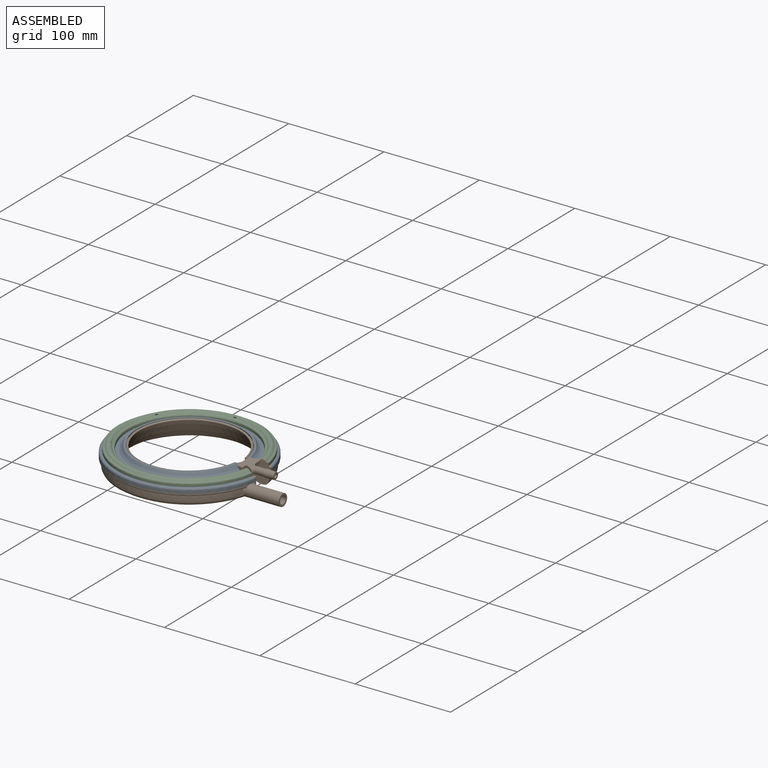
[diagram: assembled view]
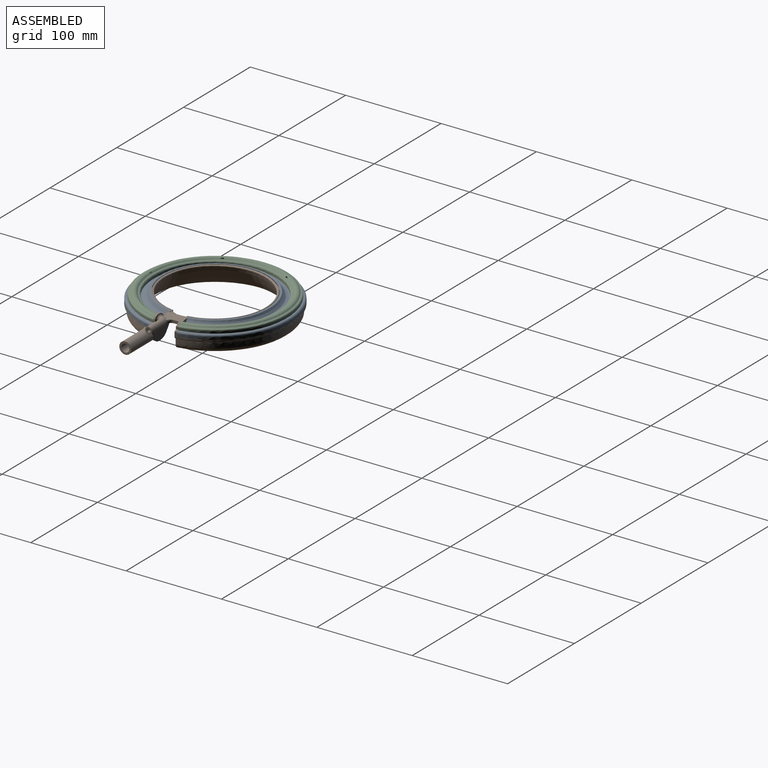
[diagram: assembled view, second angle]
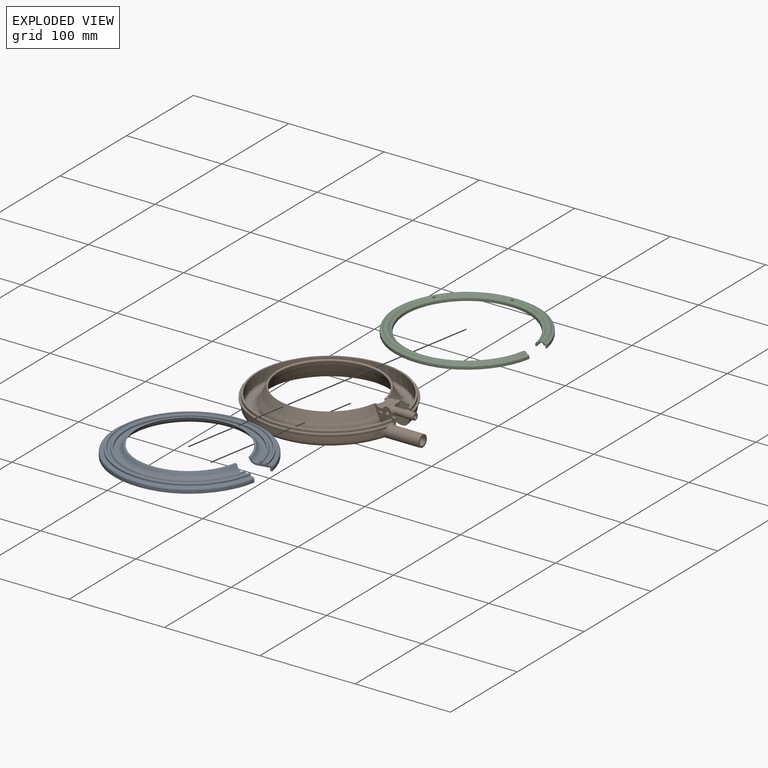
[diagram: exploded view]
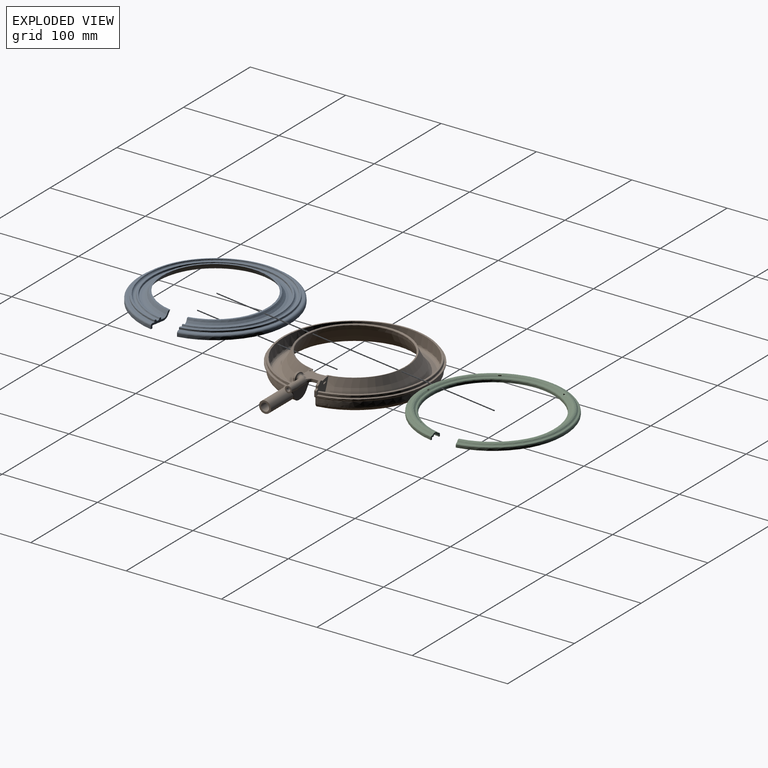
[diagram: exploded view, second angle]
ASSEMBLY  parts=3 mates=2
PART A: 26 faces, bbox 169.7x169.3x10.9 mm
  f0: plane 23.23x10.9mm, normal (0.17,0.98,0), area 66.4mm2, adj f2,f3,f4,f5,f6,f7,f8,f9
  f1: plane 22.34x9.34mm, normal (0.17,-0.98,0), area 63.3mm2, adj f2,f3,f4,f5,f6,f7,f8,f9
  f2: plane 152.24x151.78mm, normal (0,0,1), area 827.3mm2, adj f0,f1,f16,f21
  f3: bspline ~159.95x159.78mm, area 548mm2, adj f0,f1,f19,f21
  f4: plane 146.58x145.93mm, normal (0,0,1), area 643.2mm2, adj f0,f1,f5,f19
  f5: bspline ~155.63x155.46mm, area 2603.1mm2, adj f0,f1,f4,f6
  f6: plane 135.61x135.01mm, normal (0,0,1), area 597.6mm2, adj f0,f1,f5,f18
  f7: bspline ~142.66x142.51mm, area 488.8mm2, adj f0,f1,f18,f20
  f8: plane 130.6x130.02mm, normal (0,0,1), area 908.9mm2, adj f0,f1,f17,f20
  f9: bspline ~130.34x130mm, area 1013.1mm2, adj f0,f1,f10,f17
  f10: bspline ~124.07x123.7mm, area 665.9mm2, adj f0,f1,f9,f11
  f11: bspline ~128.51x128.18mm, area 1367.7mm2, adj f0,f1,f10,f22,f23
  f12: plane 151.25x150.79mm, normal (0,0,-1), area 5124.7mm2, adj f0,f1,f22,f23,f25
  f13: bspline ~165.25x164.88mm, area 904.8mm2, adj f0,f1,f24,f25
  f14: plane 159.08x157.36mm, normal (0,0,-1), area 688.2mm2, adj f0,f1,f15,f24
  f15: bspline ~169.58x169.2mm, area 1393mm2, adj f0,f1,f14,f16
  f16: bspline ~156.26x155.84mm, area 1445.2mm2, adj f0,f1,f2,f15
  f17: bspline ~125.85x125.63mm, area 1884.9mm2, adj f0,f1,f8,f9
  f18: bspline ~132.61x132.12mm, area 308mm2, adj f0,f1,f6,f7
  f19: bspline ~147.55x147.03mm, area 343.5mm2, adj f0,f1,f3,f4
  f20: bspline ~131.62x131.31mm, area 306.3mm2, adj f0,f1,f7,f8
  f21: bspline ~148.55x148.37mm, area 345.2mm2, adj f0,f1,f2,f3
  f22: bspline ~125.64x62.33mm, area 1296.8mm2, adj f1,f11,f12,f23
  f23: bspline ~129.57x73.35mm, area 1313.5mm2, adj f0,f11,f12,f22
  f24: bspline ~153.28x153.1mm, area 356.2mm2, adj f0,f1,f13,f14
  f25: bspline ~152.38x152.26mm, area 354.5mm2, adj f0,f1,f12,f13
PART B: 121 faces, bbox 202.7x169.6x43.7 mm
  f0: plane 9.46x5.7mm, normal (0.14,0.99,0), area 2.4mm2, adj f30,f31,f114,f115
  f1: plane 23.52x20.35mm, normal (0.14,0.99,0), area 283mm2, adj f24,f31,f32,f33,f34,f35,f36,f37
  f2: bspline ~169.57x169.1mm, area 461mm2, adj f16,f46,f72,f92
  f3: cone r=57.04mm half-angle=30deg, axis (0,0,-1), area 4.1mm2, adj f25,f29,f68,f107
  f4: cylinder r=64.5mm len=3.87mm, axis (0,0,-1), area 3.7mm2, adj f25,f29,f68,f107
  f5: torus R=70mm, axis (0,0,-1), area 25mm2, adj f25,f53,f71
  f6: plane 1.79x1.56mm, normal (0.14,0.99,0), area 0.8mm2, adj f26,f37,f102,f120
  f7: cone r=57.54mm half-angle=30deg, axis (0,0,-1), area 2.6mm2, adj f9,f41,f52,f68
  f8: cylinder r=64.5mm len=1.89mm, axis (0,0,1), area 2.4mm2, adj f9,f41,f52,f68
  f9: plane 25.13x23.75mm, normal (0.14,-0.99,0), area 367.7mm2, adj f7,f8,f12,f24,f38,f39,f40,f41
  f10: torus R=3.97mm, axis (0,0,-1), area 77mm2, adj f14,f57,f110,f111,f112,f114
  f11: bspline ~165.25x164.79mm, area 5622.1mm2, adj f24,f34,f47,f48,f74,f86,f87
  f12: plane 154.23x153.73mm, normal (0,0,-1), area 6.1mm2, adj f9,f72,f73,f74,f75,f88
  f13: cylinder r=2mm len=20mm, axis (1,0,0), area 125.1mm2, adj f54,f55,f63
  f14: cylinder r=3.5mm len=10mm, axis (1,0,0), area 110.2mm2, adj f10,f58,f59
  f15: bspline ~128.11x70.99mm, area 0mm2, adj f16,f33,f96
  f16: plane 159.14x157.46mm, normal (0,0,1), area 687.9mm2, adj f2,f15,f25,f52,f77,f94
  f17: bspline ~165.25x164.79mm, area 904.8mm2, adj f25,f52,f76,f77
  f18: plane 151.27x150.84mm, normal (0,0,1), area 672.1mm2, adj f19,f25,f52,f76
  f19: bspline ~160.92x160.47mm, area 6828.2mm2, adj f18,f20,f25,f52,f66
  f20: plane 142.29x141.88mm, normal (0,0,1), area 265.9mm2, adj f19,f21,f25,f52
  f21: bspline ~154.03x153.55mm, area 10146mm2, adj f20,f22,f25,f52
  f22: bspline ~117.88x117.69mm, area 476.7mm2, adj f21,f26,f38,f119
  f23: bspline ~154.03x153.54mm, area 10684.6mm2, adj f24,f35,f36,f37,f49,f50,f51,f119
  f24: plane 142.29x142.22mm, normal (0,0,-1), area 264.8mm2, adj f1,f9,f11,f23,f34,f35,f48,f49
  f25: plane 24.3x24.01mm, normal (-0.17,-0.98,0), area 318.6mm2, adj f3,f4,f5,f16,f17,f18,f19,f20
  f26: cone r=54.54mm half-angle=72deg, axis (0,0,1), area 2.4mm2, adj f6,f22,f27,f101,f120
  f27: plane 2.78x2.08mm, normal (0,0,1), area 4.1mm2, adj f25,f26,f28,f99,f100
  f28: cone r=57.04mm half-angle=30deg, axis (0,0,-1), area 1.2mm2, adj f25,f27,f98,f99
  f29: plane 4.35x2.62mm, normal (0,0,1), area 8.2mm2, adj f3,f4,f25,f107
  f30: torus R=70mm, axis (0,0,-1), area 28mm2, adj f0,f25,f31,f109,f115,f116
  f31: cylinder r=75.5mm len=3.75mm, axis (0,0,-1), area 8.4mm2, adj f0,f1,f25,f30,f32
  f32: plane 2.57x2.4mm, normal (0,0,1), area 4.7mm2, adj f1,f25,f31,f83
  f33: cylinder r=78.56mm len=6.06mm, axis (0,0,-1), area 11.9mm2, adj f1,f15,f25,f83,f84,f95,f97
  f34: torus R=71.56mm, axis (0,0,-1), area 11.1mm2, adj f1,f11,f24,f89
  f35: torus R=71.08mm, axis (0,0,-1), area 22.5mm2, adj f1,f23,f24,f36
  f36: cone r=61.56mm half-angle=30deg, axis (0,0,-1), area 15.8mm2, adj f1,f23,f35,f37
  f37: torus R=102.07mm, axis (0,0,-1), area 16.9mm2, adj f1,f6,f23,f36,f103,f104,f105,f120
  f38: cone r=54.54mm half-angle=72deg, axis (0,0,1), area 2.4mm2, adj f9,f22,f39,f118
  f39: plane 3.23x2.12mm, normal (0,0,1), area 5mm2, adj f9,f38,f40,f52
  f40: cone r=57.54mm half-angle=30deg, axis (0,0,-1), area 0mm2, adj f9,f39,f52,f67
  f41: plane 4.73x2.54mm, normal (0,0,1), area 8.3mm2, adj f7,f8,f9,f52
  f42: torus R=70mm, axis (0,0,1), area 13.8mm2, adj f9,f43,f52,f108,f117
  f43: plane 2.38x1.67mm, normal (0,0,1), area 2.9mm2, adj f9,f42,f52,f80
  f44: cylinder r=75.5mm len=2.21mm, axis (0,0,1), area 3.9mm2, adj f9,f52,f80,f81
  f45: plane 2.36x1.01mm, normal (0,0,1), area 1.5mm2, adj f9,f52,f81,f82
  f46: cylinder r=78.16mm len=5.01mm, axis (0,0,1), area 11.6mm2, adj f2,f9,f52,f73,f82
  f47: cylinder r=76.16mm len=5.01mm, axis (0,0,1), area 11.3mm2, adj f9,f11,f48,f75
  f48: torus R=71.16mm, axis (0,0,1), area 17.3mm2, adj f9,f11,f24,f47
  f49: torus R=70.38mm, axis (0,0,1), area 22.3mm2, adj f9,f23,f24,f50
  f50: cone r=60.86mm half-angle=30deg, axis (0,0,-1), area 15.7mm2, adj f9,f23,f49,f51
  f51: torus R=94.27mm, axis (0,0,1), area 14mm2, adj f9,f23,f50,f118
  f52: plane 23.57x22.05mm, normal (-0.17,0.98,0), area 309.3mm2, adj f7,f8,f16,f17,f18,f19,f20,f21
  f53: cylinder r=2mm len=4.25mm, axis (0.14,0.99,0), area 25.1mm2, adj f5,f54
  f54: torus R=3.97mm, axis (0,0,-1), area 71.2mm2, adj f13,f53,f62
  f55: plane 7.03x7mm, normal (1,0,0), area 26.2mm2, adj f13,f56,f61,f63
  f56: cylinder r=3.5mm len=7mm, axis (1,0,0), area 22mm2, adj f55,f60,f61
  f57: plane 7x3.51mm, normal (-1,0,0), area 0.2mm2, adj f10,f58
  f58: cylinder r=3.5mm len=10mm, axis (-1,0,0), area 110.2mm2, adj f14,f57,f59
  f59: plane 8x8mm, normal (-1,0,0), area 11.6mm2, adj f14,f58,f60
  f60: cone r=3.5mm half-angle=3.6deg, axis (-1,0,0), area 185.7mm2, adj f56,f59,f61
  f61: cylinder r=3.5mm len=7mm, axis (-1,0,0), area 22mm2, adj f55,f56,f60
  f62: plane 4x2.01mm, normal (-1,0,0), area 0.1mm2, adj f54,f63
  f63: cylinder r=2mm len=20mm, axis (-1,0,0), area 125.1mm2, adj f13,f55,f62
  f64: plane 12.5x12.5mm, normal (1,0,0), area 66mm2, adj f65,f66
  f65: cylinder r=6.25mm len=38.74mm, axis (1,0,0), area 1364.9mm2, adj f64,f87,f88,f89,f90,f91,f92,f93
  f66: cylinder r=4.25mm len=39.26mm, axis (1,0,0), area 1048.3mm2, adj f19,f64
  f67: plane 22.99x15.06mm, normal (0,0,1), area 213.7mm2, adj f9,f25,f40,f52,f69,f78,f98,f99
  f68: plane 22.71x14.8mm, normal (0,0,-1), area 207.5mm2, adj f3,f4,f7,f8,f9,f25,f52,f69
  f69: plane 6.38x3.75mm, normal (1,0,0), area 18.6mm2, adj f9,f67,f68,f110,f117
  f70: cylinder r=55mm len=13.94mm, axis (0,0,1), area 13.9mm2, adj f9,f78,f79,f104
  f71: plane 1.63x1.04mm, normal (1,0,0), area 1.1mm2, adj f5,f25
  f72: bspline ~156.23x155.39mm, area 703.6mm2, adj f2,f12,f73,f90
  f73: torus R=77.17mm, axis (0,0,1), area 3.6mm2, adj f9,f12,f46,f72
  f74: bspline ~154.24x153.88mm, area 690.3mm2, adj f11,f12,f75,f86
  f75: torus R=77.15mm, axis (0,0,1), area 3.5mm2, adj f9,f12,f47,f74
  f76: bspline ~152.25x151.96mm, area 354.5mm2, adj f17,f18,f25,f52
  f77: bspline ~153.25x152.94mm, area 356.1mm2, adj f16,f17,f25,f52
  f78: torus R=56mm, axis (0,0,1), area 22mm2, adj f9,f67,f70,f100,f101,f102,f103
  f79: torus R=56mm, axis (0,0,1), area 22.1mm2, adj f9,f68,f70,f105,f106
  f80: torus R=74.5mm, axis (0,0,1), area 3.5mm2, adj f9,f43,f44,f52
  f81: torus R=76.5mm, axis (0,0,-1), area 3.5mm2, adj f9,f44,f45,f52
  f82: torus R=77.16mm, axis (0,0,-1), area 3.6mm2, adj f9,f45,f46,f52
  f83: torus R=77.56mm, axis (0,0,1), area 3.6mm2, adj f1,f25,f32,f33
  f84: torus R=115.67mm, axis (0,0,1), area 0mm2, adj f1,f33,f95
  f85: bspline ~1.3x0.98mm, area 0.7mm2, adj f86,f87,f88
  f86: bspline ~1.13x1.04mm, area 0.7mm2, adj f11,f74,f85,f88
  f87: bspline ~12x10.24mm, area 16.5mm2, adj f11,f65,f85,f89
  f88: cylinder r=1mm len=1.48mm, axis (1,0,0), area 0mm2, adj f12,f65,f85,f86,f90
  f89: bspline ~3.77x3.39mm, area 4.1mm2, adj f34,f65,f87,f91
  f90: bspline ~3.11x3.02mm, area 4.9mm2, adj f65,f72,f88,f92
  f91: bspline ~1.3x1.26mm, area 0.9mm2, adj f1,f65,f89,f93
  f92: bspline ~2.27x2.03mm, area 2.4mm2, adj f2,f65,f90,f94
  f93: bspline ~6.95x2.98mm, area 6.2mm2, adj f1,f65,f91,f95
  f94: bspline ~7.23x2.68mm, area 6.1mm2, adj f16,f65,f92,f96
  f95: bspline ~2.25x2.09mm, area 0.2mm2, adj f33,f65,f84,f93,f97
  f96: bspline ~2.29x1.85mm, area 0.6mm2, adj f15,f65,f94,f97
  f97: bspline ~4.28x3.93mm, area 4.4mm2, adj f33,f65,f95,f96
  f98: torus R=59.11mm, axis (0,0,1), area 5.9mm2, adj f25,f28,f67,f99
  f99: cylinder r=2mm len=3.36mm, axis (-0.99,0.14,0), area 5.5mm2, adj f27,f28,f67,f98
  f100: bspline ~2.08x1.71mm, area 2.3mm2, adj f27,f78,f101
  f101: bspline ~2.09x1.89mm, area 0mm2, adj f26,f78,f100
  f102: bspline ~2.77x2.53mm, area 0mm2, adj f6,f78,f103
  f103: bspline ~2.22x1.81mm, area 1mm2, adj f37,f78,f102,f104
  f104: bspline ~1.96x1.83mm, area 2.5mm2, adj f37,f70,f103,f105
  f105: bspline ~3.05x2.28mm, area 4.7mm2, adj f37,f79,f104,f106
  f106: bspline ~2.25x2.19mm, area 2mm2, adj f1,f79,f105,f107
  f107: cylinder r=2mm len=9.62mm, axis (0.99,-0.14,0), area 19mm2, adj f1,f3,f4,f29,f68,f106,f113
  f108: torus R=66.23mm, axis (0,0,-1), area 3.6mm2, adj f42,f52,f67,f117
  f109: torus R=63.42mm, axis (0,0,-1), area 6.3mm2, adj f25,f30,f67,f116
  f110: bspline ~12.64x6.8mm, area 29.4mm2, adj f10,f67,f68,f69,f111,f112
  f111: torus R=8.12mm, axis (0,0,1), area 16.7mm2, adj f10,f67,f110,f115
  f112: torus R=8.58mm, axis (0,0,1), area 17.4mm2, adj f10,f68,f110,f113
  f113: sphere r=2mm, area 4mm2, adj f107,f112,f114
  f114: torus R=5.5mm, axis (0.14,0.99,0), area 64.1mm2, adj f0,f1,f10,f113,f115
  f115: torus R=1mm, axis (0.14,0.99,0), area 4.9mm2, adj f0,f30,f111,f114,f116
  f116: cylinder r=2mm len=2.72mm, axis (-0.99,0.14,0), area 3.6mm2, adj f30,f67,f109,f115
  f117: cylinder r=0.7mm len=1.71mm, axis (0.99,0.14,0), area 0.8mm2, adj f9,f42,f67,f69,f108
  f118: torus R=53.27mm, axis (0,0,-1), area 1.2mm2, adj f9,f38,f51,f119
  f119: bspline ~107.76x105.88mm, area 247.5mm2, adj f22,f23,f118,f120
  f120: torus R=53.27mm, axis (0,0,1), area 1.2mm2, adj f6,f26,f37,f119
PART C: 46 faces, bbox 163.7x163.1x5.8 mm
  f0: bspline ~158.14x158mm, area 2698.9mm2, adj f2,f3,f14,f15,f16,f17,f18,f19
  f1: bspline ~155.63x155.49mm, area 2584mm2, adj f2,f3,f11,f12,f14,f15,f16,f17
  f2: plane 10.88x5.79mm, normal (0.17,0.98,0), area 25.4mm2, adj f0,f1,f4,f5,f6,f7,f8,f9
  f3: plane 10.88x5.79mm, normal (0.17,-0.98,0), area 25.4mm2, adj f0,f1,f4,f5,f6,f7,f8,f9
  f4: plane 153.26x151.42mm, normal (0,0,-1), area 443mm2, adj f2,f3,f5,f39
  f5: bspline ~163.19x163.05mm, area 1051.4mm2, adj f2,f3,f4,f43
  f6: plane 147.75x147.09mm, normal (0,0,1), area 64.9mm2, adj f2,f3,f42,f43
  f7: plane 131.72x131.11mm, normal (0,0,1), area 57mm2, adj f2,f3,f40,f41
  f8: bspline ~139.42x139.29mm, area 898mm2, adj f2,f3,f9,f40
  f9: plane 130.93x130.35mm, normal (0,0,-1), area 382.7mm2, adj f2,f3,f8,f38
  f10: bspline ~142.66x142.53mm, area 488.9mm2, adj f2,f3,f38,f45
  f11: plane 135.61x135mm, normal (0,0,-1), area 597.6mm2, adj f1,f2,f3,f45
  f12: plane 146.59x145.93mm, normal (0,0,-1), area 644.5mm2, adj f1,f2,f3,f44
  f13: bspline ~159.95x159.81mm, area 548mm2, adj f2,f3,f39,f44
  f14: plane 3.03x1.34mm, normal (0,0.87,-0.5), area 4.5mm2, adj f0,f1,f15,f17
  f15: plane 2.14x1.6mm, normal (-1,0,0), area 1.5mm2, adj f0,f1,f14,f16
  f16: plane 3.03x1.47mm, normal (0,-0.87,0.5), area 4.9mm2, adj f0,f1,f15,f17
  f17: plane 2.13x1.6mm, normal (1,0,0), area 1.5mm2, adj f0,f1,f14,f16
  f18: plane 3x2.18mm, normal (0.75,0.43,-0.5), area 4.5mm2, adj f0,f1,f19,f21
  f19: plane 2.13x1.39mm, normal (-0.5,0.87,0), area 1.5mm2, adj f0,f1,f18,f20
  f20: plane 3.04x2.24mm, normal (-0.75,-0.43,0.5), area 4.9mm2, adj f0,f1,f19,f21
  f21: plane 2.12x1.39mm, normal (0.5,-0.87,0), area 1.5mm2, adj f0,f1,f18,f20
  f22: plane 3x2.18mm, normal (0.75,-0.43,-0.5), area 4.5mm2, adj f0,f1,f23,f25
  f23: plane 2.12x1.39mm, normal (0.5,0.87,0), area 1.5mm2, adj f0,f1,f22,f24
  f24: plane 3.04x2.24mm, normal (-0.75,0.43,0.5), area 4.9mm2, adj f0,f1,f23,f25
  f25: plane 2.13x1.39mm, normal (-0.5,-0.87,0), area 1.5mm2, adj f0,f1,f22,f24
  f26: plane 3.03x1.34mm, normal (0,-0.87,-0.5), area 4.5mm2, adj f0,f1,f27,f29
  f27: plane 2.13x1.6mm, normal (1,0,0), area 1.5mm2, adj f0,f1,f26,f28
  f28: plane 3.03x1.47mm, normal (0,0.87,0.5), area 4.9mm2, adj f0,f1,f27,f29
  f29: plane 2.14x1.6mm, normal (-1,0,0), area 1.5mm2, adj f0,f1,f26,f28
  f30: plane 3x2.18mm, normal (-0.75,-0.43,-0.5), area 4.5mm2, adj f0,f1,f31,f33
  f31: plane 2.11x1.35mm, normal (0.5,-0.87,0), area 1.6mm2, adj f0,f1,f30,f32
  f32: plane 3.04x2.26mm, normal (0.75,0.43,0.5), area 5mm2, adj f0,f1,f31,f33
  f33: plane 2.11x1.35mm, normal (-0.5,0.87,0), area 1.6mm2, adj f0,f1,f30,f32
  f34: plane 3x2.18mm, normal (-0.75,0.43,-0.5), area 4.5mm2, adj f0,f1,f35,f37
  f35: plane 2.11x1.35mm, normal (-0.5,-0.87,0), area 1.6mm2, adj f0,f1,f34,f36
  f36: plane 3.04x2.26mm, normal (0.75,-0.43,0.5), area 5mm2, adj f0,f1,f35,f37
  f37: plane 2.11x1.35mm, normal (0.5,0.87,0), area 1.6mm2, adj f0,f1,f34,f36
  f38: bspline ~131.62x131.31mm, area 306.3mm2, adj f2,f3,f9,f10
  f39: bspline ~148.56x148.37mm, area 345.2mm2, adj f2,f3,f4,f13
  f40: bspline ~131.42x131.1mm, area 847.1mm2, adj f2,f3,f7,f8
  f41: bspline ~133.98x133.49mm, area 518.6mm2, adj f0,f2,f3,f7
  f42: bspline ~147.45x146.93mm, area 570.7mm2, adj f0,f2,f3,f6
  f43: bspline ~150.57x150.32mm, area 977.3mm2, adj f2,f3,f5,f6
  f44: bspline ~147.56x147.03mm, area 343.5mm2, adj f2,f3,f12,f13
  f45: bspline ~132.6x132.12mm, area 308mm2, adj f2,f3,f10,f11
PLACE A t=(-62.46,-30.14,11.02)mm
PLACE B t=(-62.46,-30.14,11.02)mm fixed
PLACE C t=(-62.46,-30.14,11.02)mm
MATE fastened A.f0 <-> B.f25  axis (0.17,0.98,0) through (14.91,-43.78,18.46)mm
MATE fastened C.f2 <-> A.f0  axis (0.17,0.98,0) through (4.51,-41.95,25.71)mm
